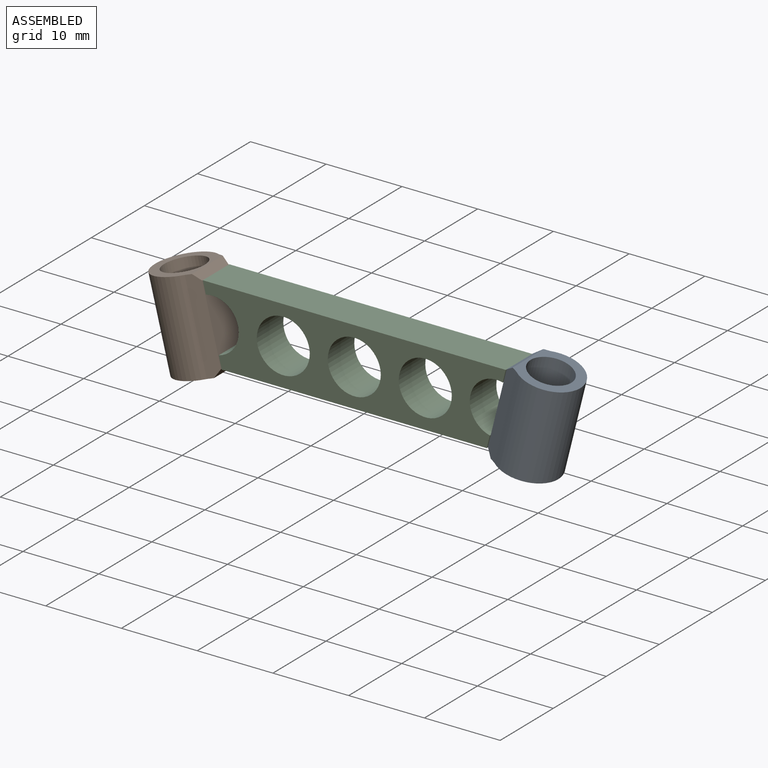
[diagram: assembled view]
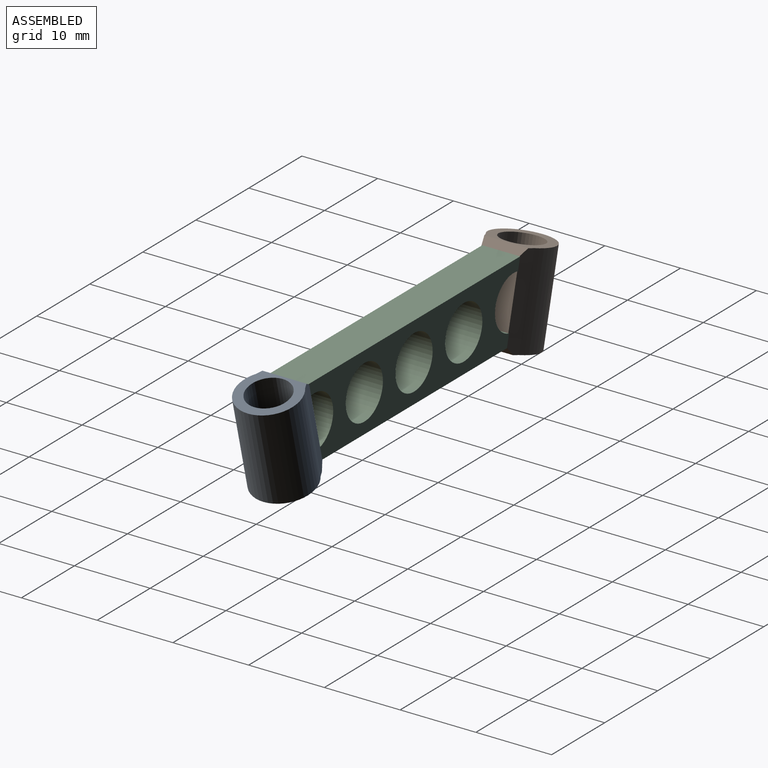
[diagram: assembled view, second angle]
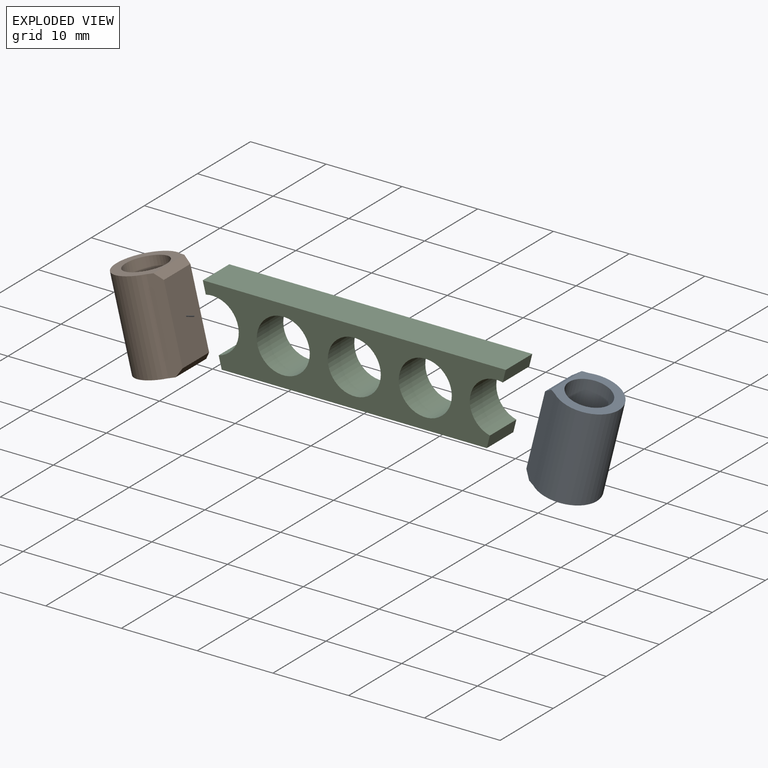
[diagram: exploded view]
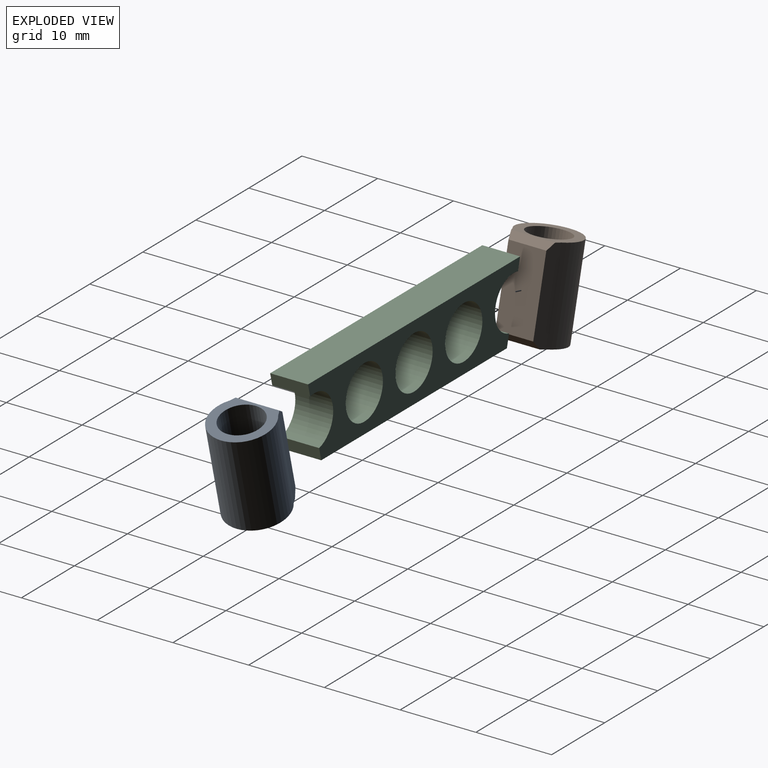
[diagram: exploded view, second angle]
ASSEMBLY  parts=3 mates=2
PART A: 9 faces, bbox 8x8x12 mm
  f0: cylinder r=4mm len=12mm, axis (0,0,-1), area 211.3mm2, adj f1,f4,f5,f6
  f1: plane 12x1.64mm, normal (0.41,-0.91,0), area 20.6mm2, adj f0,f2,f5,f6,f7,f8
  f2: plane 10.2x5mm, normal (1,0,0), area 51mm2, adj f1,f4,f7,f8
  f3: cylinder r=2.75mm len=12mm, axis (0,0,-1), area 207.3mm2, adj f5,f6
  f4: plane 12x1.65mm, normal (0.41,0.91,0), area 20.8mm2, adj f0,f2,f5,f6,f7,f8
  f5: plane 8x7.1mm, normal (0,0,1), area 23.6mm2, adj f0,f1,f3,f4,f8
  f6: plane 8x7.1mm, normal (0,0,-1), area 23.6mm2, adj f0,f1,f3,f4,f7
  f7: plane 5.8x0.9mm, normal (0.71,0,-0.71), area 6.9mm2, adj f1,f2,f4,f6
  f8: plane 5.8x0.9mm, normal (0.71,0,0.71), area 6.9mm2, adj f1,f2,f4,f5
PART B: same geometry as A
PART C: 13 faces, bbox 40x5x10 mm
  f0: cylinder r=3.5mm len=6.9mm, axis (0,1,0), area 55mm2, adj f1,f9,f11,f12
  f1: plane 5x1.6mm, normal (-0.97,0,-0.24), area 8.3mm2, adj f0,f2,f11,f12
  f2: plane 35x5mm, normal (0,0,-1), area 175mm2, adj f1,f3,f11,f12
  f3: plane 5x1.6mm, normal (0.97,0,-0.24), area 8.3mm2, adj f2,f4,f11,f12
  f4: cylinder r=3.5mm len=6.9mm, axis (0,1,0), area 55mm2, adj f3,f5,f11,f12
  f5: plane 5x1.6mm, normal (0.97,0,-0.24), area 8.3mm2, adj f4,f6,f11,f12
  f6: plane 40x5mm, normal (0,0,1), area 200mm2, adj f5,f9,f11,f12
  f7: cylinder r=3.5mm len=7mm, axis (0,1,0), area 110mm2, adj f11,f12
  f8: cylinder r=3.5mm len=7mm, axis (0,1,0), area 110mm2, adj f11,f12
  f9: plane 5x1.6mm, normal (-0.97,0,-0.24), area 8.3mm2, adj f0,f6,f11,f12
  f10: cylinder r=3.5mm len=7mm, axis (0,1,0), area 110mm2, adj f11,f12
  f11: plane 40x10mm, normal (0,-1,0), area 221.1mm2, adj f0,f1,f2,f3,f4,f5,f6,f7
  f12: plane 40x10mm, normal (0,1,0), area 221.1mm2, adj f0,f1,f2,f3,f4,f5,f6,f7
PLACE A rot(axis=(-0.12,0,-0.99),180deg) t=(43.78,1.89,-10.32)mm
PLACE B rot(axis=(0,-1,0),14deg) t=(-51.24,1.63,-10.33)mm
PLACE C t=(-3.73,4.23,-2)mm fixed
MATE planar C.f3 <-> A.f2  axis (0.97,0,-0.24) through (13.97,1.73,-1.2)mm
MATE planar B.f2 <-> C.f9  axis (0.97,0,0.24) through (-22.49,1.63,3.04)mm
